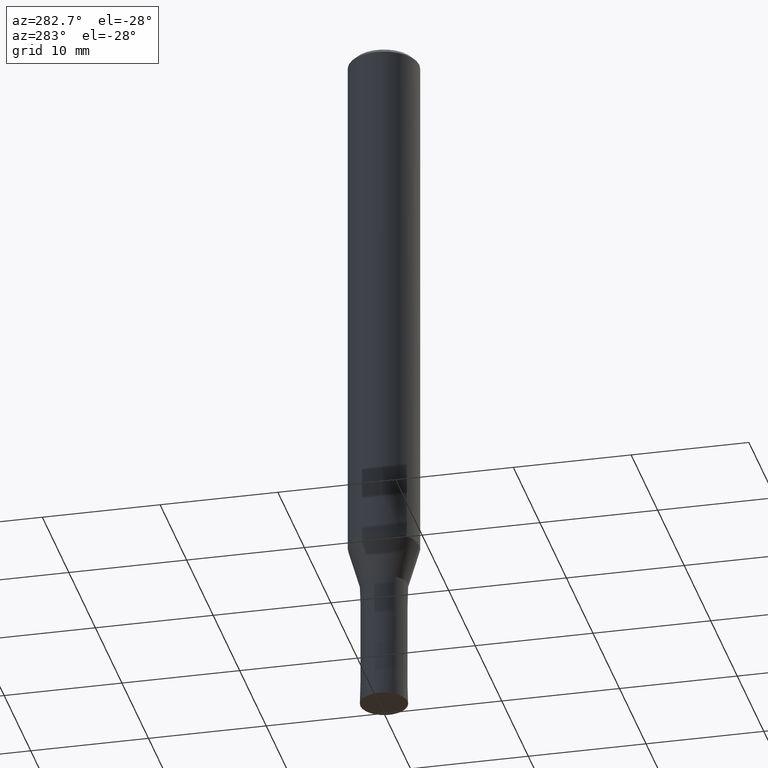
[diagram: clean part render]
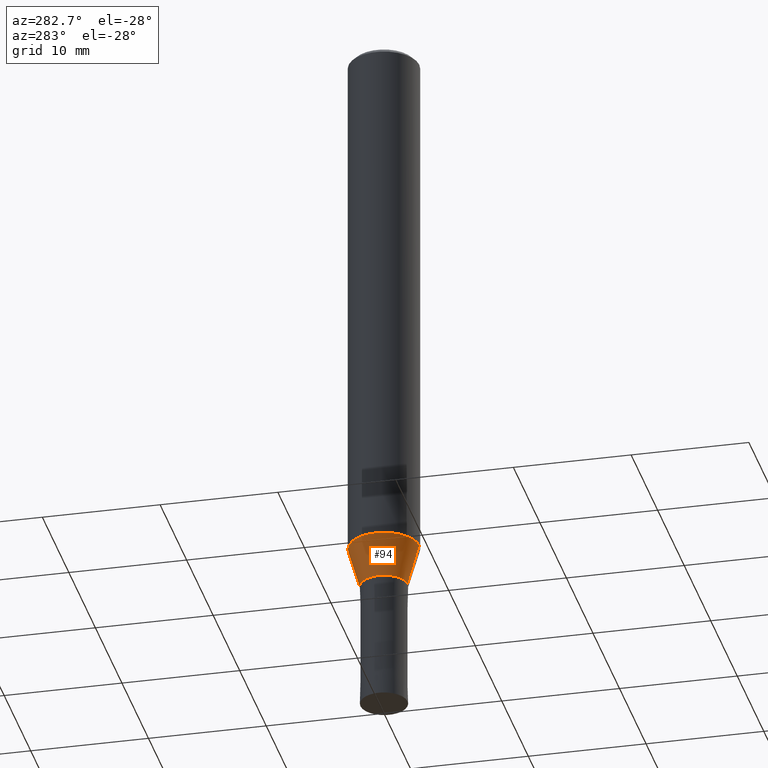
[diagram: same view with one face highlighted and labeled with its STEP entity id]
A machine part, auxiliary view. The second image highlights one B-rep face of the part: STEP entity #94.
In plain terms, the highlighted conical surface has half-angle 16.002 deg.
Its self-contained STEP definition (entity closure, byte-faithful):
#94=ADVANCED_FACE('',(#216),#217,.T.);
#96=EDGE_CURVE('',#178,#134,#219,.T.);
#100=EDGE_CURVE('',#108,#124,#224,.T.);
#108=VERTEX_POINT('',#235);
#124=VERTEX_POINT('',#252);
#130=EDGE_CURVE('',#124,#178,#259,.T.);
#134=VERTEX_POINT('',#263);
#178=VERTEX_POINT('',#313);
#184=EDGE_CURVE('',#108,#134,#319,.T.);
#216=FACE_OUTER_BOUND('',#346,.T.);
#217=CONICAL_SURFACE('',#347,2.49995,0.279284171542493);
#219=LINE('',#350,#351);
#224=LINE('',#357,#358);
#235=CARTESIAN_POINT('',(2.44915147732706E-016,-1.99995,-49.0));
#252=CARTESIAN_POINT('',(3.67375783114944E-016,-2.99995,-45.513));
#259=CIRCLE('',#400,2.99995);
#263=CARTESIAN_POINT('',(0.0,1.99995,-49.0));
#313=CARTESIAN_POINT('',(0.0,2.99995,-45.513));
#319=CIRCLE('',#474,1.99995);
#346=EDGE_LOOP('',(#489,#490,#491,#492));
#347=AXIS2_PLACEMENT_3D('',#493,#494,#495);
#350=CARTESIAN_POINT('',(-3.06145465423825E-016,2.49995,-47.2565));
#351=VECTOR('',#496,1.0);
#357=CARTESIAN_POINT('',(3.06145465423825E-016,-2.49995,-47.2565));
#358=VECTOR('',#505,1.0);
#400=AXIS2_PLACEMENT_3D('',#555,#556,#557);
#474=AXIS2_PLACEMENT_3D('',#621,#622,#623);
#489=ORIENTED_EDGE('',*,*,#96,.T.);
#490=ORIENTED_EDGE('',*,*,#184,.F.);
#491=ORIENTED_EDGE('',*,*,#100,.T.);
#492=ORIENTED_EDGE('',*,*,#130,.T.);
#493=CARTESIAN_POINT('',(0.0,0.0,-47.2565));
#494=DIRECTION('',(-0.0,-0.0,1.0));
#495=DIRECTION('',(0.0,1.0,0.0));
#496=DIRECTION('',(3.3758432755158E-017,-0.275667626987133,-0.961253015304131));
#505=DIRECTION('',(3.3758432755158E-017,-0.275667626987133,0.961253015304131));
#555=CARTESIAN_POINT('',(0.0,0.0,-45.513));
#556=DIRECTION('',(0.0,0.0,-1.0));
#557=DIRECTION('',(0.0,1.0,0.0));
#621=CARTESIAN_POINT('',(0.0,0.0,-49.0));
#622=DIRECTION('',(0.0,0.0,-1.0));
#623=DIRECTION('',(0.0,1.0,0.0));